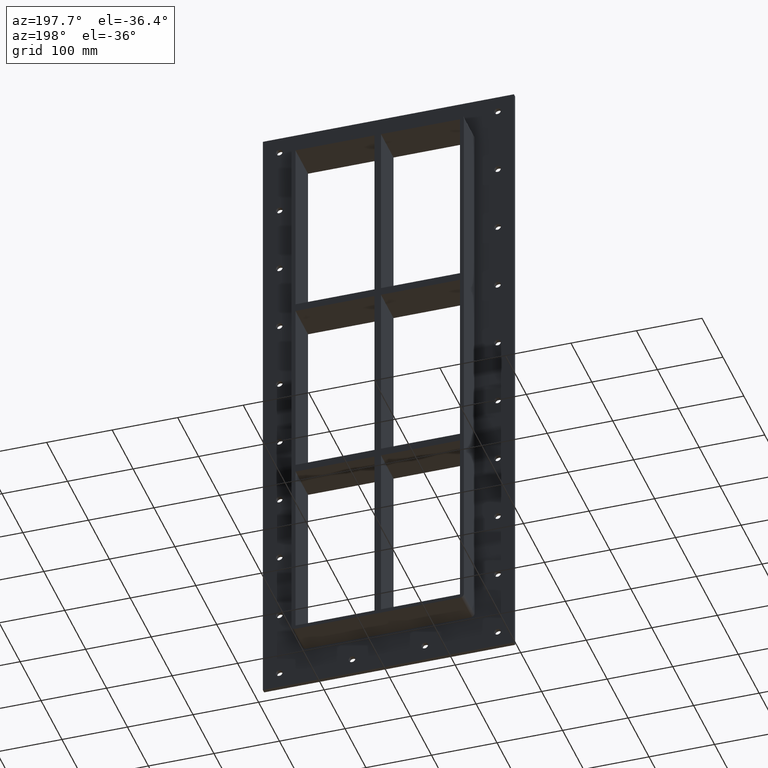
[diagram: clean part render]
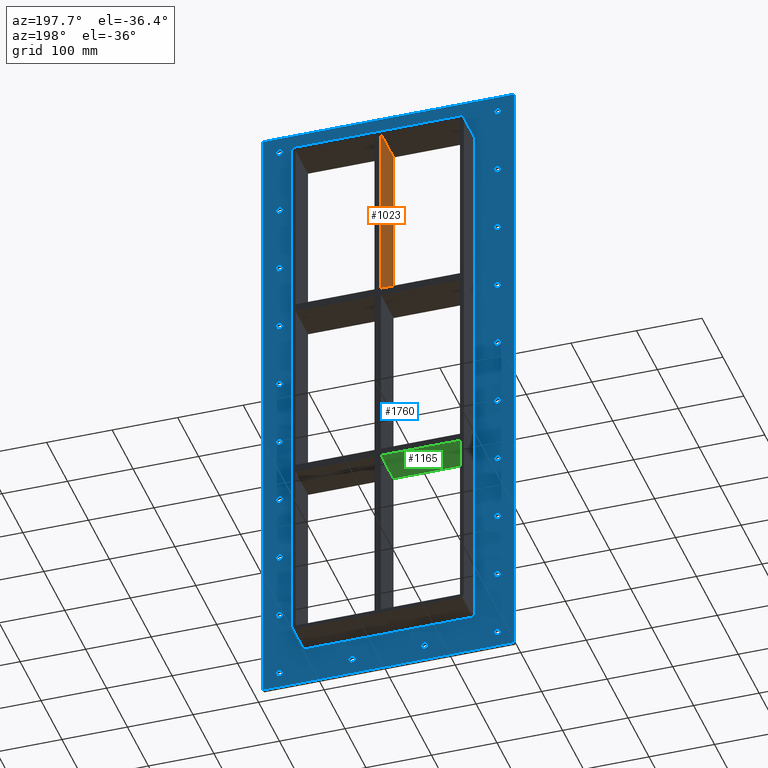
[diagram: same view with three faces highlighted in distinct colors, each labeled with its STEP entity id]
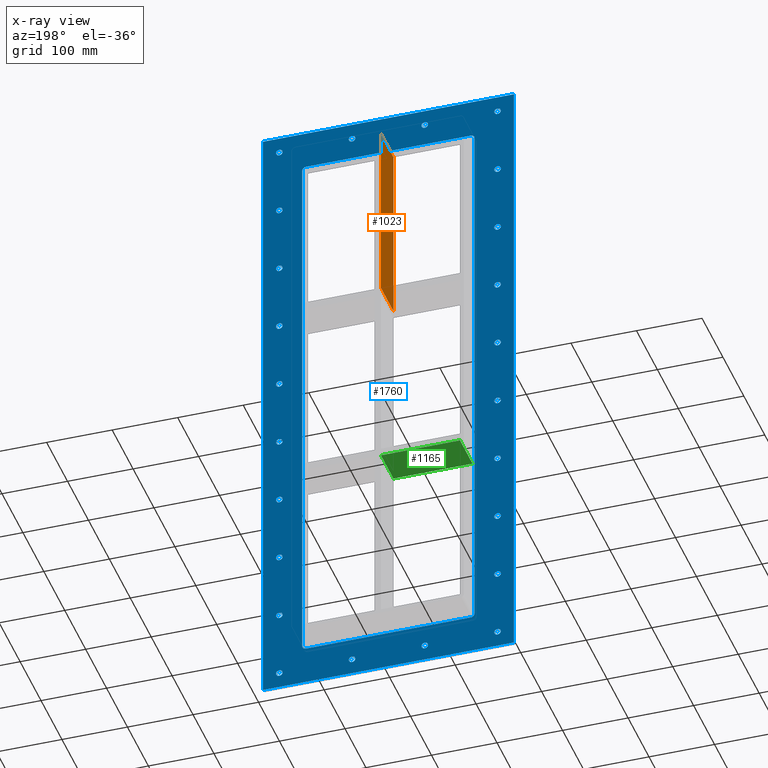
[diagram: x-ray of the same camera — body ghosted, the three highlighted faces saturated]
A machine part, auxiliary view with three faces highlighted in distinct colors.
The next image is the same camera in x-ray (body ghosted, the three faces saturated) — at least one of them is partly hidden behind the body in this view.
Their STEP definitions:

[orange] entity #1023 — the highlighted planar face has unit normal (-1, 0, 0).
#825=CARTESIAN_POINT('',(-5.000000000001369,57.0,150.99999999999994));
#826=VERTEX_POINT('',#825);
#827=CARTESIAN_POINT('',(-5.000000000001368,-3.0,150.99999999999994));
#828=VERTEX_POINT('',#827);
#829=CARTESIAN_POINT('',(-5.000000000001368,57.0,150.99999999999994));
#830=DIRECTION('',(0.0,-1.0,0.0));
#831=VECTOR('',#830,60.0);
#832=LINE('',#829,#831);
#833=EDGE_CURVE('',#826,#828,#832,.T.);
#993=CARTESIAN_POINT('',(-5.000000000001261,-3.0,-429.00000000000006));
#994=DIRECTION('',(-1.0,0.0,0.0));
#995=DIRECTION('',(0.0,0.0,1.0));
#996=AXIS2_PLACEMENT_3D('',#993,#994,#995);
#997=PLANE('',#996);
#998=ORIENTED_EDGE('',*,*,#833,.T.);
#999=CARTESIAN_POINT('',(-5.000000000001421,-3.0,429.00000000000006));
#1000=VERTEX_POINT('',#999);
#1001=CARTESIAN_POINT('',(-5.00000000000137,-3.0,150.99999999999994));
#1002=DIRECTION('',(0.0,0.0,1.0));
#1003=VECTOR('',#1002,278.00000000000011);
#1004=LINE('',#1001,#1003);
#1005=EDGE_CURVE('',#828,#1000,#1004,.T.);
#1006=ORIENTED_EDGE('',*,*,#1005,.T.);
#1007=CARTESIAN_POINT('',(-5.000000000001421,57.0,429.00000000000006));
#1008=VERTEX_POINT('',#1007);
#1009=CARTESIAN_POINT('',(-5.000000000001421,57.000000000000007,429.00000000000006));
#1010=DIRECTION('',(0.0,-1.0,0.0));
#1011=VECTOR('',#1010,60.000000000000007);
#1012=LINE('',#1009,#1011);
#1013=EDGE_CURVE('',#1008,#1000,#1012,.T.);
#1014=ORIENTED_EDGE('',*,*,#1013,.F.);
#1015=CARTESIAN_POINT('',(-5.00000000000137,57.0,150.99999999999994));
#1016=DIRECTION('',(0.0,0.0,1.0));
#1017=VECTOR('',#1016,278.00000000000011);
#1018=LINE('',#1015,#1017);
#1019=EDGE_CURVE('',#826,#1008,#1018,.T.);
#1020=ORIENTED_EDGE('',*,*,#1019,.F.);
#1021=EDGE_LOOP('',(#998,#1006,#1014,#1020));
#1022=FACE_OUTER_BOUND('',#1021,.T.);
#1023=ADVANCED_FACE('',(#1022),#997,.T.);

[blue] entity #1760 — the highlighted planar face has unit normal (0, 1, 0).
#73=CARTESIAN_POINT('',(-171.50000000000006,5.999999999999943,-470.0));
#74=VERTEX_POINT('',#73);
#75=CARTESIAN_POINT('',(-166.50000000000006,5.999999999999943,-470.0));
#76=DIRECTION('',(0.0,-1.0,0.0));
#77=DIRECTION('',(1.0,0.0,0.0));
#78=AXIS2_PLACEMENT_3D('',#75,#76,#77);
#79=CIRCLE('',#78,5.0);
#80=EDGE_CURVE('',#74,#74,#79,.T.);
#101=CARTESIAN_POINT('',(161.5,5.999999999999943,-365.55999999999995));
#102=VERTEX_POINT('',#101);
#103=CARTESIAN_POINT('',(166.5,5.999999999999943,-365.55999999999995));
#104=DIRECTION('',(0.0,-1.0,0.0));
#105=DIRECTION('',(1.0,0.0,0.0));
#106=AXIS2_PLACEMENT_3D('',#103,#104,#105);
#107=CIRCLE('',#106,5.0);
#108=EDGE_CURVE('',#102,#102,#107,.T.);
#129=CARTESIAN_POINT('',(-171.50000000000006,5.999999999999943,-365.55999999999995));
#130=VERTEX_POINT('',#129);
#131=CARTESIAN_POINT('',(-166.50000000000006,5.999999999999943,-365.55999999999995));
#132=DIRECTION('',(0.0,-1.0,0.0));
#133=DIRECTION('',(1.0,0.0,0.0));
#134=AXIS2_PLACEMENT_3D('',#131,#132,#133);
#135=CIRCLE('',#134,5.0);
#136=EDGE_CURVE('',#130,#130,#135,.T.);
#157=CARTESIAN_POINT('',(161.5,5.999999999999943,-261.11999999999995));
#158=VERTEX_POINT('',#157);
#159=CARTESIAN_POINT('',(166.5,5.999999999999943,-261.11999999999995));
#160=DIRECTION('',(0.0,-1.0,0.0));
#161=DIRECTION('',(1.0,0.0,0.0));
#162=AXIS2_PLACEMENT_3D('',#159,#160,#161);
#163=CIRCLE('',#162,5.0);
#164=EDGE_CURVE('',#158,#158,#163,.T.);
#185=CARTESIAN_POINT('',(-171.50000000000006,5.999999999999943,-261.11999999999995));
#186=VERTEX_POINT('',#185);
#187=CARTESIAN_POINT('',(-166.50000000000006,5.999999999999943,-261.11999999999995));
#188=DIRECTION('',(0.0,-1.0,0.0));
#189=DIRECTION('',(1.0,0.0,0.0));
#190=AXIS2_PLACEMENT_3D('',#187,#188,#189);
#191=CIRCLE('',#190,5.0);
#192=EDGE_CURVE('',#186,#186,#191,.T.);
#213=CARTESIAN_POINT('',(161.5,5.999999999999943,-156.67999999999989));
#214=VERTEX_POINT('',#213);
#215=CARTESIAN_POINT('',(166.5,5.999999999999943,-156.67999999999989));
#216=DIRECTION('',(0.0,-1.0,0.0));
#217=DIRECTION('',(1.0,0.0,0.0));
#218=AXIS2_PLACEMENT_3D('',#215,#216,#217);
#219=CIRCLE('',#218,5.0);
#220=EDGE_CURVE('',#214,#214,#219,.T.);
#241=CARTESIAN_POINT('',(-171.50000000000006,5.999999999999943,-156.67999999999989));
#242=VERTEX_POINT('',#241);
#243=CARTESIAN_POINT('',(-166.50000000000006,5.999999999999943,-156.67999999999989));
#244=DIRECTION('',(0.0,-1.0,0.0));
#245=DIRECTION('',(1.0,0.0,0.0));
#246=AXIS2_PLACEMENT_3D('',#243,#244,#245);
#247=CIRCLE('',#246,5.0);
#248=EDGE_CURVE('',#242,#242,#247,.T.);
#269=CARTESIAN_POINT('',(161.5,5.999999999999943,-52.239999999999952));
#270=VERTEX_POINT('',#269);
#271=CARTESIAN_POINT('',(166.5,5.999999999999943,-52.239999999999952));
#272=DIRECTION('',(0.0,-1.0,0.0));
#273=DIRECTION('',(1.0,0.0,0.0));
#274=AXIS2_PLACEMENT_3D('',#271,#272,#273);
#275=CIRCLE('',#274,5.0);
#276=EDGE_CURVE('',#270,#270,#275,.T.);
#297=CARTESIAN_POINT('',(-171.50000000000006,5.999999999999943,-52.239999999999952));
#298=VERTEX_POINT('',#297);
#299=CARTESIAN_POINT('',(-166.50000000000006,5.999999999999943,-52.239999999999952));
#300=DIRECTION('',(0.0,-1.0,0.0));
#301=DIRECTION('',(1.0,0.0,0.0));
#302=AXIS2_PLACEMENT_3D('',#299,#300,#301);
#303=CIRCLE('',#302,5.0);
#304=EDGE_CURVE('',#298,#298,#303,.T.);
#325=CARTESIAN_POINT('',(161.5,5.999999999999943,52.200000000000074));
#326=VERTEX_POINT('',#325);
#327=CARTESIAN_POINT('',(166.5,5.999999999999943,52.200000000000074));
#328=DIRECTION('',(0.0,-1.0,0.0));
#329=DIRECTION('',(1.0,0.0,0.0));
#330=AXIS2_PLACEMENT_3D('',#327,#328,#329);
#331=CIRCLE('',#330,5.0);
#332=EDGE_CURVE('',#326,#326,#331,.T.);
#353=CARTESIAN_POINT('',(-171.50000000000006,5.999999999999943,52.200000000000074));
#354=VERTEX_POINT('',#353);
#355=CARTESIAN_POINT('',(-166.50000000000006,5.999999999999943,52.200000000000074));
#356=DIRECTION('',(0.0,-1.0,0.0));
#357=DIRECTION('',(1.0,0.0,0.0));
#358=AXIS2_PLACEMENT_3D('',#355,#356,#357);
#359=CIRCLE('',#358,5.0);
#360=EDGE_CURVE('',#354,#354,#359,.T.);
#381=CARTESIAN_POINT('',(161.5,5.999999999999943,156.6400000000001));
#382=VERTEX_POINT('',#381);
#383=CARTESIAN_POINT('',(166.5,5.999999999999943,156.6400000000001));
#384=DIRECTION('',(0.0,-1.0,0.0));
#385=DIRECTION('',(1.0,0.0,0.0));
#386=AXIS2_PLACEMENT_3D('',#383,#384,#385);
#387=CIRCLE('',#386,5.0);
#388=EDGE_CURVE('',#382,#382,#387,.T.);
#409=CARTESIAN_POINT('',(-171.50000000000006,5.999999999999943,156.6400000000001));
#410=VERTEX_POINT('',#409);
#411=CARTESIAN_POINT('',(-166.50000000000006,5.999999999999943,156.6400000000001));
#412=DIRECTION('',(0.0,-1.0,0.0));
#413=DIRECTION('',(1.0,0.0,0.0));
#414=AXIS2_PLACEMENT_3D('',#411,#412,#413);
#415=CIRCLE('',#414,5.0);
#416=EDGE_CURVE('',#410,#410,#415,.T.);
#437=CARTESIAN_POINT('',(161.5,5.999999999999943,261.08000000000004));
#438=VERTEX_POINT('',#437);
#439=CARTESIAN_POINT('',(166.5,5.999999999999943,261.08000000000004));
#440=DIRECTION('',(0.0,-1.0,0.0));
#441=DIRECTION('',(1.0,0.0,0.0));
#442=AXIS2_PLACEMENT_3D('',#439,#440,#441);
#443=CIRCLE('',#442,5.0);
#444=EDGE_CURVE('',#438,#438,#443,.T.);
#465=CARTESIAN_POINT('',(-171.50000000000006,5.999999999999943,261.08000000000004));
#466=VERTEX_POINT('',#465);
#467=CARTESIAN_POINT('',(-166.50000000000006,5.999999999999943,261.08000000000004));
#468=DIRECTION('',(0.0,-1.0,0.0));
#469=DIRECTION('',(1.0,0.0,0.0));
#470=AXIS2_PLACEMENT_3D('',#467,#468,#469);
#471=CIRCLE('',#470,5.0);
#472=EDGE_CURVE('',#466,#466,#471,.T.);
#493=CARTESIAN_POINT('',(161.5,5.999999999999943,365.5200000000001));
#494=VERTEX_POINT('',#493);
#495=CARTESIAN_POINT('',(166.5,5.999999999999943,365.5200000000001));
#496=DIRECTION('',(0.0,-1.0,0.0));
#497=DIRECTION('',(1.0,0.0,0.0));
#498=AXIS2_PLACEMENT_3D('',#495,#496,#497);
#499=CIRCLE('',#498,5.0);
#500=EDGE_CURVE('',#494,#494,#499,.T.);
#521=CARTESIAN_POINT('',(-171.50000000000006,5.999999999999943,365.5200000000001));
#522=VERTEX_POINT('',#521);
#523=CARTESIAN_POINT('',(-166.50000000000006,5.999999999999943,365.5200000000001));
#524=DIRECTION('',(0.0,-1.0,0.0));
#525=DIRECTION('',(1.0,0.0,0.0));
#526=AXIS2_PLACEMENT_3D('',#523,#524,#525);
#527=CIRCLE('',#526,5.0);
#528=EDGE_CURVE('',#522,#522,#527,.T.);
#549=CARTESIAN_POINT('',(-60.500000000000043,5.999999999999943,469.96000000000009));
#550=VERTEX_POINT('',#549);
#551=CARTESIAN_POINT('',(-55.500000000000043,5.999999999999943,469.96000000000009));
#552=DIRECTION('',(0.0,-1.0,0.0));
#553=DIRECTION('',(1.0,0.0,0.0));
#554=AXIS2_PLACEMENT_3D('',#551,#552,#553);
#555=CIRCLE('',#554,5.0);
#556=EDGE_CURVE('',#550,#550,#555,.T.);
#577=CARTESIAN_POINT('',(-60.500000000000043,5.999999999999943,-470.0));
#578=VERTEX_POINT('',#577);
#579=CARTESIAN_POINT('',(-55.500000000000043,5.999999999999943,-470.0));
#580=DIRECTION('',(0.0,-1.0,0.0));
#581=DIRECTION('',(1.0,0.0,0.0));
#582=AXIS2_PLACEMENT_3D('',#579,#580,#581);
#583=CIRCLE('',#582,5.0);
#584=EDGE_CURVE('',#578,#578,#583,.T.);
#605=CARTESIAN_POINT('',(50.499999999999972,5.999999999999943,469.96000000000009));
#606=VERTEX_POINT('',#605);
#607=CARTESIAN_POINT('',(55.499999999999972,5.999999999999943,469.96000000000009));
#608=DIRECTION('',(0.0,-1.0,0.0));
#609=DIRECTION('',(1.0,0.0,0.0));
#610=AXIS2_PLACEMENT_3D('',#607,#608,#609);
#611=CIRCLE('',#610,5.0);
#612=EDGE_CURVE('',#606,#606,#611,.T.);
#633=CARTESIAN_POINT('',(50.499999999999972,5.999999999999943,-470.0));
#634=VERTEX_POINT('',#633);
#635=CARTESIAN_POINT('',(55.499999999999972,5.999999999999943,-470.0));
#636=DIRECTION('',(0.0,-1.0,0.0));
#637=DIRECTION('',(1.0,0.0,0.0));
#638=AXIS2_PLACEMENT_3D('',#635,#636,#637);
#639=CIRCLE('',#638,5.0);
#640=EDGE_CURVE('',#634,#634,#639,.T.);
#661=CARTESIAN_POINT('',(161.5,5.999999999999943,-470.0));
#662=VERTEX_POINT('',#661);
#663=CARTESIAN_POINT('',(166.5,5.999999999999943,-470.0));
#664=DIRECTION('',(0.0,-1.0,0.0));
#665=DIRECTION('',(1.0,0.0,0.0));
#666=AXIS2_PLACEMENT_3D('',#663,#664,#665);
#667=CIRCLE('',#666,5.0);
#668=EDGE_CURVE('',#662,#662,#667,.T.);
#689=CARTESIAN_POINT('',(-171.50000000000006,5.999999999999943,469.96000000000009));
#690=VERTEX_POINT('',#689);
#691=CARTESIAN_POINT('',(-166.50000000000006,5.999999999999943,469.96000000000009));
#692=DIRECTION('',(0.0,-1.0,0.0));
#693=DIRECTION('',(1.0,0.0,0.0));
#694=AXIS2_PLACEMENT_3D('',#691,#692,#693);
#695=CIRCLE('',#694,5.0);
#696=EDGE_CURVE('',#690,#690,#695,.T.);
#717=CARTESIAN_POINT('',(161.5,5.999999999999943,469.96000000000009));
#718=VERTEX_POINT('',#717);
#719=CARTESIAN_POINT('',(166.5,5.999999999999943,469.96000000000009));
#720=DIRECTION('',(0.0,-1.0,0.0));
#721=DIRECTION('',(1.0,0.0,0.0));
#722=AXIS2_PLACEMENT_3D('',#719,#720,#721);
#723=CIRCLE('',#722,5.0);
#724=EDGE_CURVE('',#718,#718,#723,.T.);
#1579=CARTESIAN_POINT('',(-1.242027E-014,6.000000000000001,3.726080E-014));
#1580=DIRECTION('',(0.0,1.0,0.0));
#1581=DIRECTION('',(0.0,0.0,1.0));
#1582=AXIS2_PLACEMENT_3D('',#1579,#1580,#1581);
#1583=PLANE('',#1582);
#1584=CARTESIAN_POINT('',(-191.50000000000003,6.000000000000001,495.00000000000006));
#1585=VERTEX_POINT('',#1584);
#1586=CARTESIAN_POINT('',(191.49999999999994,6.000000000000001,495.00000000000006));
#1587=VERTEX_POINT('',#1586);
#1588=CARTESIAN_POINT('',(-191.50000000000003,6.000000000000001,495.00000000000006));
#1589=DIRECTION('',(1.0,0.0,0.0));
#1590=VECTOR('',#1589,383.0);
#1591=LINE('',#1588,#1590);
#1592=EDGE_CURVE('',#1585,#1587,#1591,.T.);
#1593=ORIENTED_EDGE('',*,*,#1592,.T.);
#1594=CARTESIAN_POINT('',(191.49999999999994,6.000000000000001,-494.99999999999994));
#1595=VERTEX_POINT('',#1594);
#1596=CARTESIAN_POINT('',(191.5,6.000000000000001,495.00000000000006));
#1597=DIRECTION('',(0.0,0.0,-1.0));
#1598=VECTOR('',#1597,990.0);
#1599=LINE('',#1596,#1598);
#1600=EDGE_CURVE('',#1587,#1595,#1599,.T.);
#1601=ORIENTED_EDGE('',*,*,#1600,.T.);
#1602=CARTESIAN_POINT('',(-191.50000000000003,6.000000000000001,-494.99999999999994));
#1603=VERTEX_POINT('',#1602);
#1604=CARTESIAN_POINT('',(191.5,6.000000000000001,-495.0));
#1605=DIRECTION('',(-1.0,0.0,0.0));
#1606=VECTOR('',#1605,383.0);
#1607=LINE('',#1604,#1606);
#1608=EDGE_CURVE('',#1595,#1603,#1607,.T.);
#1609=ORIENTED_EDGE('',*,*,#1608,.T.);
#1610=CARTESIAN_POINT('',(-191.50000000000003,6.000000000000001,-495.0));
#1611=DIRECTION('',(0.0,0.0,1.0));
#1612=VECTOR('',#1611,990.0);
#1613=LINE('',#1610,#1612);
#1614=EDGE_CURVE('',#1603,#1585,#1613,.T.);
#1615=ORIENTED_EDGE('',*,*,#1614,.T.);
#1616=EDGE_LOOP('',(#1593,#1601,#1609,#1615));
#1617=FACE_OUTER_BOUND('',#1616,.T.);
#1618=ORIENTED_EDGE('',*,*,#80,.T.);
#1619=EDGE_LOOP('',(#1618));
#1620=FACE_BOUND('',#1619,.T.);
#1621=ORIENTED_EDGE('',*,*,#108,.T.);
#1622=EDGE_LOOP('',(#1621));
#1623=FACE_BOUND('',#1622,.T.);
#1624=ORIENTED_EDGE('',*,*,#136,.T.);
#1625=EDGE_LOOP('',(#1624));
#1626=FACE_BOUND('',#1625,.T.);
#1627=ORIENTED_EDGE('',*,*,#164,.T.);
#1628=EDGE_LOOP('',(#1627));
#1629=FACE_BOUND('',#1628,.T.);
#1630=ORIENTED_EDGE('',*,*,#192,.T.);
#1631=EDGE_LOOP('',(#1630));
#1632=FACE_BOUND('',#1631,.T.);
#1633=ORIENTED_EDGE('',*,*,#220,.T.);
#1634=EDGE_LOOP('',(#1633));
#1635=FACE_BOUND('',#1634,.T.);
#1636=ORIENTED_EDGE('',*,*,#248,.T.);
#1637=EDGE_LOOP('',(#1636));
#1638=FACE_BOUND('',#1637,.T.);
#1639=ORIENTED_EDGE('',*,*,#276,.T.);
#1640=EDGE_LOOP('',(#1639));
#1641=FACE_BOUND('',#1640,.T.);
#1642=ORIENTED_EDGE('',*,*,#304,.T.);
#1643=EDGE_LOOP('',(#1642));
#1644=FACE_BOUND('',#1643,.T.);
#1645=ORIENTED_EDGE('',*,*,#332,.T.);
#1646=EDGE_LOOP('',(#1645));
#1647=FACE_BOUND('',#1646,.T.);
#1648=ORIENTED_EDGE('',*,*,#360,.T.);
#1649=EDGE_LOOP('',(#1648));
#1650=FACE_BOUND('',#1649,.T.);
#1651=ORIENTED_EDGE('',*,*,#388,.T.);
#1652=EDGE_LOOP('',(#1651));
#1653=FACE_BOUND('',#1652,.T.);
#1654=ORIENTED_EDGE('',*,*,#416,.T.);
#1655=EDGE_LOOP('',(#1654));
#1656=FACE_BOUND('',#1655,.T.);
#1657=ORIENTED_EDGE('',*,*,#444,.T.);
#1658=EDGE_LOOP('',(#1657));
#1659=FACE_BOUND('',#1658,.T.);
#1660=ORIENTED_EDGE('',*,*,#472,.T.);
#1661=EDGE_LOOP('',(#1660));
#1662=FACE_BOUND('',#1661,.T.);
#1663=ORIENTED_EDGE('',*,*,#500,.T.);
#1664=EDGE_LOOP('',(#1663));
#1665=FACE_BOUND('',#1664,.T.);
#1666=ORIENTED_EDGE('',*,*,#528,.T.);
#1667=EDGE_LOOP('',(#1666));
#1668=FACE_BOUND('',#1667,.T.);
#1669=ORIENTED_EDGE('',*,*,#556,.T.);
#1670=EDGE_LOOP('',(#1669));
#1671=FACE_BOUND('',#1670,.T.);
#1672=ORIENTED_EDGE('',*,*,#584,.T.);
#1673=EDGE_LOOP('',(#1672));
#1674=FACE_BOUND('',#1673,.T.);
#1675=ORIENTED_EDGE('',*,*,#612,.T.);
#1676=EDGE_LOOP('',(#1675));
#1677=FACE_BOUND('',#1676,.T.);
#1678=ORIENTED_EDGE('',*,*,#640,.T.);
#1679=EDGE_LOOP('',(#1678));
#1680=FACE_BOUND('',#1679,.T.);
#1681=ORIENTED_EDGE('',*,*,#668,.T.);
#1682=EDGE_LOOP('',(#1681));
#1683=FACE_BOUND('',#1682,.T.);
#1684=ORIENTED_EDGE('',*,*,#696,.T.);
#1685=EDGE_LOOP('',(#1684));
#1686=FACE_BOUND('',#1685,.T.);
#1687=ORIENTED_EDGE('',*,*,#724,.T.);
#1688=EDGE_LOOP('',(#1687));
#1689=FACE_BOUND('',#1688,.T.);
#1690=CARTESIAN_POINT('',(-125.50000000000004,6.000000000000001,-435.0));
#1691=VERTEX_POINT('',#1690);
#1692=CARTESIAN_POINT('',(-131.50000000000003,6.000000000000001,-429.00000000000006));
#1693=VERTEX_POINT('',#1692);
#1694=CARTESIAN_POINT('',(-125.50000000000004,6.000000000000001,-429.00000000000006));
#1695=DIRECTION('',(0.0,1.0,0.0));
#1696=DIRECTION('',(-0.70710678118655,0.0,-0.707106781186545));
#1697=AXIS2_PLACEMENT_3D('',#1694,#1695,#1696);
#1698=CIRCLE('',#1697,6.000000000000001);
#1699=EDGE_CURVE('',#1691,#1693,#1698,.T.);
#1700=ORIENTED_EDGE('',*,*,#1699,.F.);
#1701=CARTESIAN_POINT('',(125.49999999999997,6.000000000000001,-435.0));
#1702=VERTEX_POINT('',#1701);
#1703=CARTESIAN_POINT('',(125.49999999999997,6.000000000000001,-435.0));
#1704=DIRECTION('',(-1.0,0.0,0.0));
#1705=VECTOR('',#1704,251.0);
#1706=LINE('',#1703,#1705);
#1707=EDGE_CURVE('',#1702,#1691,#1706,.T.);
#1708=ORIENTED_EDGE('',*,*,#1707,.F.);
#1709=CARTESIAN_POINT('',(131.5,6.000000000000001,-428.99999999999989));
#1710=VERTEX_POINT('',#1709);
#1711=CARTESIAN_POINT('',(125.49999999999997,6.000000000000001,-428.99999999999989));
#1712=DIRECTION('',(0.0,1.0,0.0));
#1713=DIRECTION('',(0.707106781186543,0.0,-0.707106781186552));
#1714=AXIS2_PLACEMENT_3D('',#1711,#1712,#1713);
#1715=CIRCLE('',#1714,6.0);
#1716=EDGE_CURVE('',#1710,#1702,#1715,.T.);
#1717=ORIENTED_EDGE('',*,*,#1716,.F.);
#1718=CARTESIAN_POINT('',(131.5,6.000000000000001,429.00000000000011));
#1719=VERTEX_POINT('',#1718);
#1720=CARTESIAN_POINT('',(131.5,6.000000000000001,429.00000000000011));
#1721=DIRECTION('',(0.0,0.0,-1.0));
#1722=VECTOR('',#1721,858.0);
#1723=LINE('',#1720,#1722);
#1724=EDGE_CURVE('',#1719,#1710,#1723,.T.);
#1725=ORIENTED_EDGE('',*,*,#1724,.F.);
#1726=CARTESIAN_POINT('',(125.5,6.000000000000001,435.00000000000011));
#1727=VERTEX_POINT('',#1726);
#1728=CARTESIAN_POINT('',(125.5,6.000000000000001,429.00000000000011));
#1729=DIRECTION('',(0.0,1.0,0.0));
#1730=DIRECTION('',(0.707106781186541,0.0,0.707106781186554));
#1731=AXIS2_PLACEMENT_3D('',#1728,#1729,#1730);
#1732=CIRCLE('',#1731,6.0);
#1733=EDGE_CURVE('',#1727,#1719,#1732,.T.);
#1734=ORIENTED_EDGE('',*,*,#1733,.F.);
#1735=CARTESIAN_POINT('',(-125.5,6.000000000000001,435.00000000000011));
#1736=VERTEX_POINT('',#1735);
#1737=CARTESIAN_POINT('',(-125.5,6.000000000000001,435.00000000000011));
#1738=DIRECTION('',(1.0,0.0,0.0));
#1739=VECTOR('',#1738,251.0);
#1740=LINE('',#1737,#1739);
#1741=EDGE_CURVE('',#1736,#1727,#1740,.T.);
#1742=ORIENTED_EDGE('',*,*,#1741,.F.);
#1743=CARTESIAN_POINT('',(-131.50000000000003,6.000000000000001,429.00000000000006));
#1744=VERTEX_POINT('',#1743);
#1745=CARTESIAN_POINT('',(-125.5,6.000000000000001,429.00000000000006));
#1746=DIRECTION('',(0.0,1.0,0.0));
#1747=DIRECTION('',(-0.707106781186543,0.0,0.707106781186552));
#1748=AXIS2_PLACEMENT_3D('',#1745,#1746,#1747);
#1749=CIRCLE('',#1748,6.0);
#1750=EDGE_CURVE('',#1744,#1736,#1749,.T.);
#1751=ORIENTED_EDGE('',*,*,#1750,.F.);
#1752=CARTESIAN_POINT('',(-131.50000000000003,6.000000000000001,-429.00000000000006));
#1753=DIRECTION('',(0.0,0.0,1.0));
#1754=VECTOR('',#1753,858.0);
#1755=LINE('',#1752,#1754);
#1756=EDGE_CURVE('',#1693,#1744,#1755,.T.);
#1757=ORIENTED_EDGE('',*,*,#1756,.F.);
#1758=EDGE_LOOP('',(#1700,#1708,#1717,#1725,#1734,#1742,#1751,#1757));
#1759=FACE_BOUND('',#1758,.T.);
#1760=ADVANCED_FACE('',(#1617,#1620,#1623,#1626,#1629,#1632,#1635,#1638,#1641,#1644,#1647,#1650,#1653,#1656,#1659,#1662,#1665,#1668,#1671,#1674,#1677,#1680,#1683,#1686,#1689,#1759),#1583,.T.);

[green] entity #1165 — the highlighted planar face has unit normal (0, 0, -1).
#1126=CARTESIAN_POINT('',(125.50000000000182,-3.0,-151.00000000000929));
#1127=DIRECTION('',(0.0,0.0,-1.0));
#1128=DIRECTION('',(-1.0,0.0,0.0));
#1129=AXIS2_PLACEMENT_3D('',#1126,#1127,#1128);
#1130=PLANE('',#1129);
#1131=CARTESIAN_POINT('',(-5.000000000001315,-3.0,-151.00000000000932));
#1132=VERTEX_POINT('',#1131);
#1133=CARTESIAN_POINT('',(-5.000000000001315,57.0,-151.00000000000932));
#1134=VERTEX_POINT('',#1133);
#1135=CARTESIAN_POINT('',(-5.000000000001315,-3.0,-151.00000000000932));
#1136=DIRECTION('',(0.0,1.0,0.0));
#1137=VECTOR('',#1136,60.0);
#1138=LINE('',#1135,#1137);
#1139=EDGE_CURVE('',#1132,#1134,#1138,.T.);
#1140=ORIENTED_EDGE('',*,*,#1139,.F.);
#1141=CARTESIAN_POINT('',(-125.49999999999969,-3.0,-151.00000000000932));
#1142=VERTEX_POINT('',#1141);
#1143=CARTESIAN_POINT('',(-5.000000000001307,-3.0,-151.00000000000929));
#1144=DIRECTION('',(-1.0,0.0,0.0));
#1145=VECTOR('',#1144,120.49999999999838);
#1146=LINE('',#1143,#1145);
#1147=EDGE_CURVE('',#1132,#1142,#1146,.T.);
#1148=ORIENTED_EDGE('',*,*,#1147,.T.);
#1149=CARTESIAN_POINT('',(-125.49999999999969,57.0,-151.00000000000932));
#1150=VERTEX_POINT('',#1149);
#1151=CARTESIAN_POINT('',(-125.50000000000003,57.000000000000007,-151.00000000000935));
#1152=DIRECTION('',(0.0,-1.0,0.0));
#1153=VECTOR('',#1152,60.000000000000007);
#1154=LINE('',#1151,#1153);
#1155=EDGE_CURVE('',#1150,#1142,#1154,.T.);
#1156=ORIENTED_EDGE('',*,*,#1155,.F.);
#1157=CARTESIAN_POINT('',(-5.000000000001307,57.0,-151.00000000000929));
#1158=DIRECTION('',(-1.0,0.0,0.0));
#1159=VECTOR('',#1158,120.49999999999838);
#1160=LINE('',#1157,#1159);
#1161=EDGE_CURVE('',#1134,#1150,#1160,.T.);
#1162=ORIENTED_EDGE('',*,*,#1161,.F.);
#1163=EDGE_LOOP('',(#1140,#1148,#1156,#1162));
#1164=FACE_OUTER_BOUND('',#1163,.T.);
#1165=ADVANCED_FACE('',(#1164),#1130,.T.);